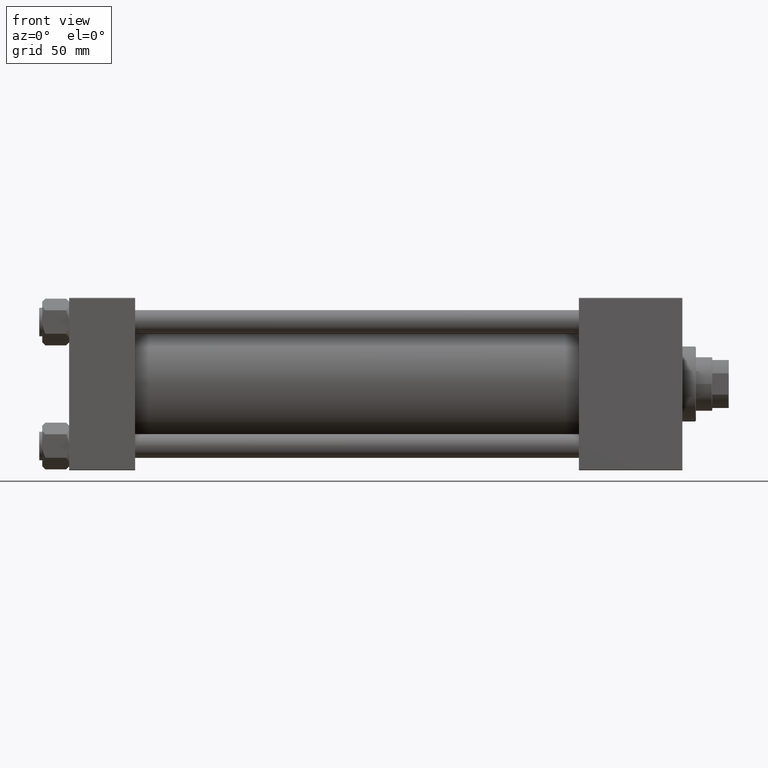
[diagram: clean part render]
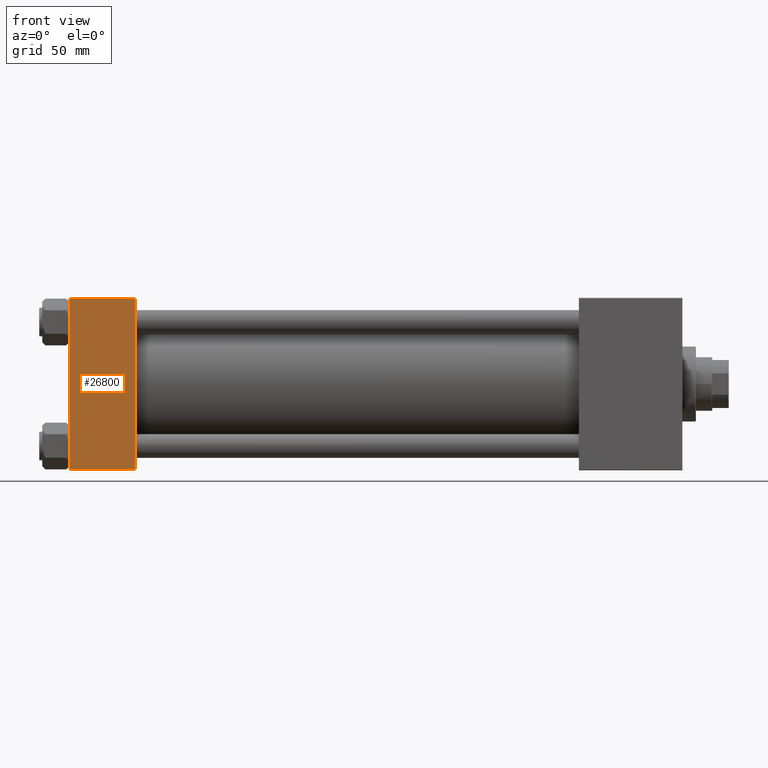
[diagram: same view with one face highlighted and labeled with its STEP entity id]
A machine part, front view. The second image highlights one B-rep face of the part: STEP entity #26800.
In plain terms, the highlighted planar face has unit normal (0, 1, 0).
Its self-contained STEP definition (entity closure, byte-faithful):
#1425 = DIRECTION ( 'NONE',  ( -1.000000000000000000, 0.000000000000000000, 0.000000000000000000 ) ) ;
#1624 = CARTESIAN_POINT ( 'NONE',  ( 44.00000000000000000, -57.50000000000000711, 57.00000000000000711 ) ) ;
#1830 = CARTESIAN_POINT ( 'NONE',  ( 0.000000000000000000, -57.50000000000000711, 57.00000000000000711 ) ) ;
#4459 = EDGE_LOOP ( 'NONE', ( #44779, #28905, #43896, #34073 ) ) ;
#6450 = VERTEX_POINT ( 'NONE', #1624 ) ;
#7952 = DIRECTION ( 'NONE',  ( 0.000000000000000000, 0.000000000000000000, -1.000000000000000000 ) ) ;
#8285 = DIRECTION ( 'NONE',  ( 0.000000000000000000, -0.000000000000000000, 1.000000000000000000 ) ) ;
#11758 = VECTOR ( 'NONE', #12735, 1000.000000000000000 ) ;
#12636 = PLANE ( 'NONE',  #27439 ) ;
#12668 = LINE ( 'NONE', #25021, #20645 ) ;
#12735 = DIRECTION ( 'NONE',  ( 0.000000000000000000, 0.000000000000000000, -1.000000000000000000 ) ) ;
#15541 = EDGE_CURVE ( 'NONE', #28374, #31127, #12668, .T. ) ;
#18694 = EDGE_CURVE ( 'NONE', #6450, #50710, #24296, .T. ) ;
#19793 = VECTOR ( 'NONE', #1425, 1000.000000000000000 ) ;
#20645 = VECTOR ( 'NONE', #32251, 1000.000000000000000 ) ;
#20961 = CARTESIAN_POINT ( 'NONE',  ( 44.00000000000000000, -57.50000000000000711, 57.00000000000000711 ) ) ;
#21159 = CARTESIAN_POINT ( 'NONE',  ( 44.00000000000000000, -57.50000000000000711, -57.00000000000000711 ) ) ;
#21848 = CARTESIAN_POINT ( 'NONE',  ( 0.000000000000000000, -57.50000000000000711, -57.00000000000000711 ) ) ;
#23126 = CARTESIAN_POINT ( 'NONE',  ( 0.000000000000000000, -57.50000000000000711, 57.49999999999999289 ) ) ;
#23465 = FACE_OUTER_BOUND ( 'NONE', #4459, .T. ) ;
#23974 = EDGE_CURVE ( 'NONE', #6450, #31127, #32312, .T. ) ;
#24296 = LINE ( 'NONE', #20961, #19793 ) ;
#25021 = CARTESIAN_POINT ( 'NONE',  ( 44.00000000000000000, -57.50000000000000711, -57.00000000000000711 ) ) ;
#26800 = ADVANCED_FACE ( 'NONE', ( #23465 ), #12636, .F. ) ;
#27439 = AXIS2_PLACEMENT_3D ( 'NONE', #39413, #31707, #8285 ) ;
#28374 = VERTEX_POINT ( 'NONE', #21848 ) ;
#28905 = ORIENTED_EDGE ( 'NONE', *, *, #15541, .T. ) ;
#31127 = VERTEX_POINT ( 'NONE', #21159 ) ;
#31553 = CARTESIAN_POINT ( 'NONE',  ( 44.00000000000000000, -57.50000000000000711, 57.49999999999999289 ) ) ;
#31707 = DIRECTION ( 'NONE',  ( -0.000000000000000000, 1.000000000000000000, 0.000000000000000000 ) ) ;
#32251 = DIRECTION ( 'NONE',  ( 1.000000000000000000, 0.000000000000000000, 0.000000000000000000 ) ) ;
#32312 = LINE ( 'NONE', #31553, #11758 ) ;
#32463 = EDGE_CURVE ( 'NONE', #50710, #28374, #42403, .T. ) ;
#34073 = ORIENTED_EDGE ( 'NONE', *, *, #18694, .T. ) ;
#39413 = CARTESIAN_POINT ( 'NONE',  ( 44.00000000000000000, -57.50000000000000711, 57.49999999999999289 ) ) ;
#42403 = LINE ( 'NONE', #23126, #43953 ) ;
#43896 = ORIENTED_EDGE ( 'NONE', *, *, #23974, .F. ) ;
#43953 = VECTOR ( 'NONE', #7952, 1000.000000000000000 ) ;
#44779 = ORIENTED_EDGE ( 'NONE', *, *, #32463, .T. ) ;
#50710 = VERTEX_POINT ( 'NONE', #1830 ) ;